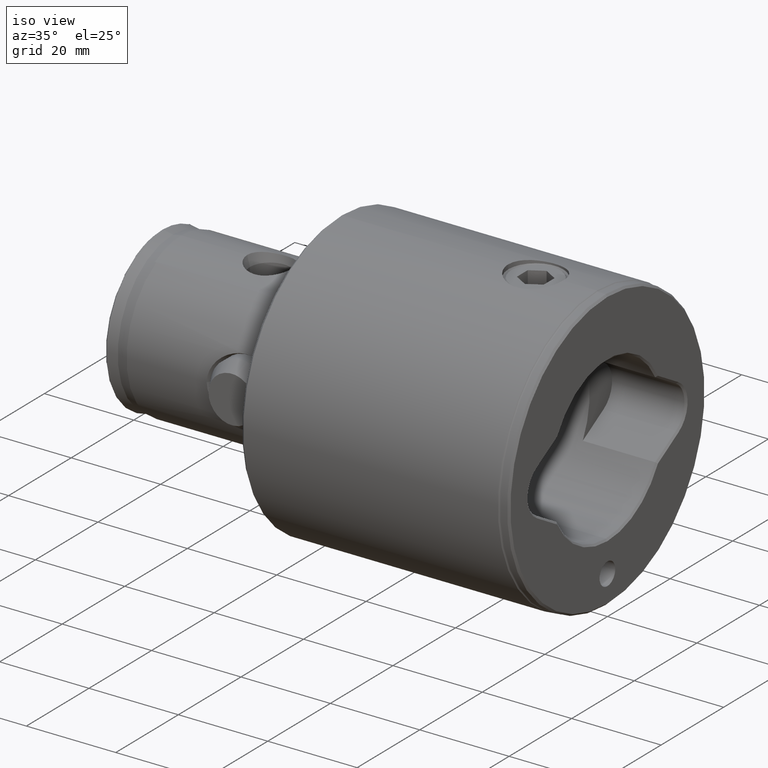
[diagram: clean part render]
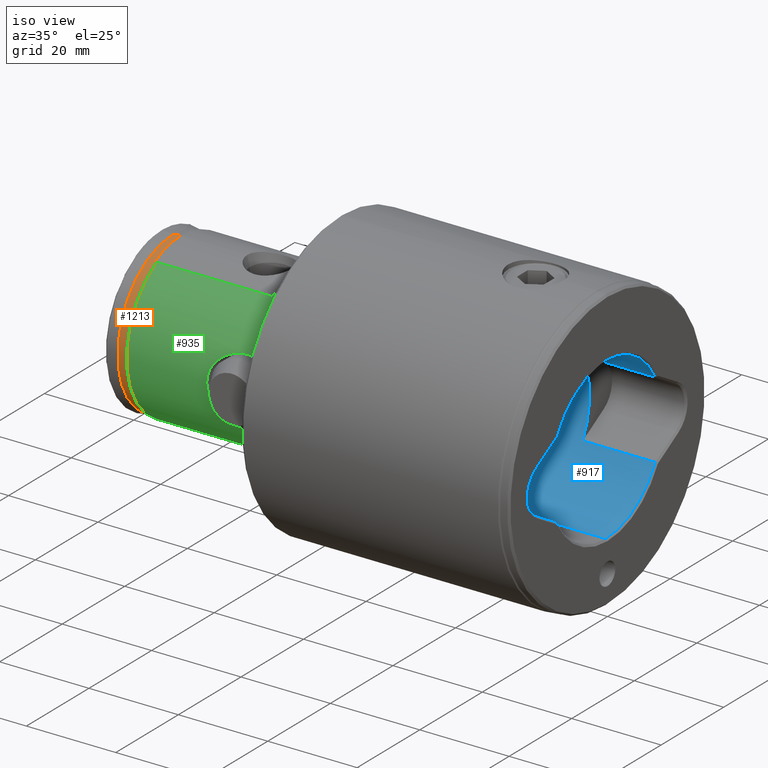
[diagram: same view with three faces highlighted in distinct colors, each labeled with its STEP entity id]
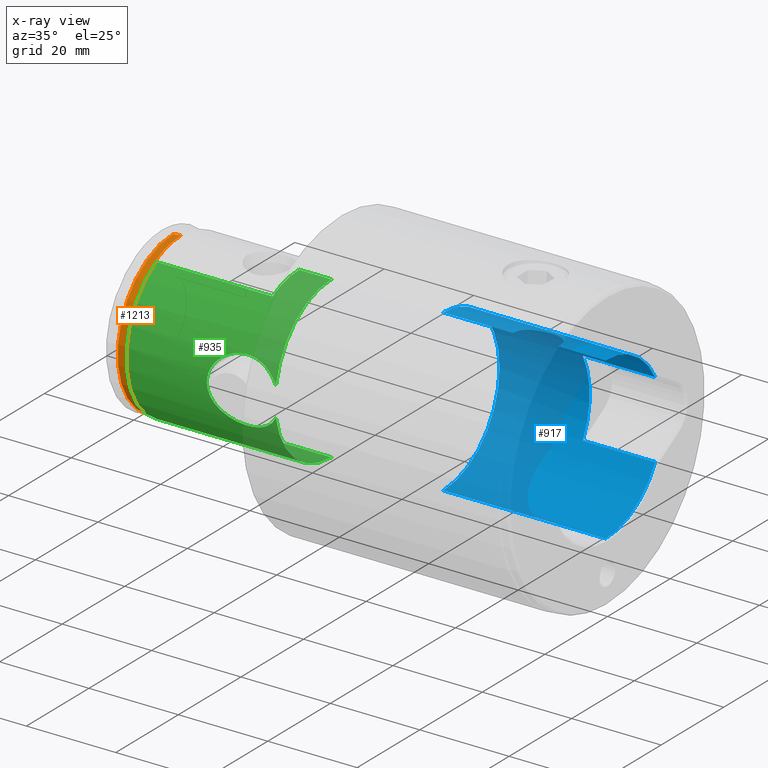
[diagram: x-ray of the same camera — body ghosted, the three highlighted faces saturated]
A machine part, iso view with three faces highlighted in distinct colors.
The next image is the same camera in x-ray (body ghosted, the three faces saturated) — at least one of them is partly hidden behind the body in this view.
Their STEP definitions:

[orange] entity #1213 — the highlighted conical surface has half-angle 10 deg.
#30 = FACE_OUTER_BOUND ( 'NONE', #951, .T. ) ;
#44 = VERTEX_POINT ( 'NONE', #664 ) ;
#52 = CIRCLE ( 'NONE', #3806, 18.00000000000000700 ) ;
#334 = CARTESIAN_POINT ( 'NONE',  ( 17.60326429340595700, 2.155778127146449900E-015, 97.25000000000000000 ) ) ;
#445 = CARTESIAN_POINT ( 'NONE',  ( 17.88531063849982400, -1.466762151048166800, 95.39600024145963200 ) ) ;
#504 = VERTEX_POINT ( 'NONE', #754 ) ;
#664 = CARTESIAN_POINT ( 'NONE',  ( 17.93000000000000000, -3.929418885916348800E-016, 95.39698972737326700 ) ) ;
#736 = VECTOR ( 'NONE', #3498, 1000.000000000000100 ) ;
#754 = CARTESIAN_POINT ( 'NONE',  ( -18.00000000000000700, 0.0000000000000000000, 95.00000000000000000 ) ) ;
#783 = CARTESIAN_POINT ( 'NONE',  ( 15.84330939538189000, -8.499999999999998200, 95.11659073622345800 ) ) ;
#850 = EDGE_CURVE ( 'NONE', #504, #1059, #52, .T. ) ;
#857 = DIRECTION ( 'NONE',  ( 1.000000000000000000, 0.0000000000000000000, 0.0000000000000000000 ) ) ;
#894 = CARTESIAN_POINT ( 'NONE',  ( 0.0000000000000000000, 0.0000000000000000000, 97.25000000000000000 ) ) ;
#951 = EDGE_LOOP ( 'NONE', ( #1546, #3963, #3264, #3399, #2241, #2447 ) ) ;
#998 = CARTESIAN_POINT ( 'NONE',  ( 0.0000000000000000000, 0.0000000000000000000, 95.00000000000000000 ) ) ;
#1059 = VERTEX_POINT ( 'NONE', #1589 ) ;
#1162 = CARTESIAN_POINT ( 'NONE',  ( 17.56801920154230600, -3.666809468810986700, 95.38897531619031200 ) ) ;
#1213 = ADVANCED_FACE ( 'NONE', ( #30 ), #1721, .T. ) ;
#1215 = B_SPLINE_CURVE_WITH_KNOTS ( 'NONE', 3,
 ( #3355, #3606, #445, #4327, #1162, #3592, #1885, #3984 ),
 .UNSPECIFIED., .F., .F.,
 ( 4, 2, 2, 4 ),
 ( 0.008809857618304313100, 0.01101073208417996200, 0.01321160655005560900, 0.01761335548180690800 ),
 .UNSPECIFIED. ) ;
#1269 = DIRECTION ( 'NONE',  ( 0.0000000000000000000, 0.0000000000000000000, 1.000000000000000000 ) ) ;
#1308 = CARTESIAN_POINT ( 'NONE',  ( 15.79663165262252100, -8.499999999999998200, 95.34976559443630600 ) ) ;
#1439 = VERTEX_POINT ( 'NONE', #4355 ) ;
#1546 = ORIENTED_EDGE ( 'NONE', *, *, #3016, .F. ) ;
#1589 = CARTESIAN_POINT ( 'NONE',  ( 15.86663165262243400, -8.499999999999998200, 95.00000000000000000 ) ) ;
#1667 = DIRECTION ( 'NONE',  ( -1.000000000000000000, 0.0000000000000000000, 0.0000000000000000000 ) ) ;
#1721 = CONICAL_SURFACE ( 'NONE', #4280, 17.60326429340595700, 0.1745329251994342500 ) ;
#1732 = EDGE_CURVE ( 'NONE', #1439, #4663, #3944, .T. ) ;
#1802 = CARTESIAN_POINT ( 'NONE',  ( 15.86663165262243400, -8.499999999999998200, 95.00000000000000000 ) ) ;
#1885 = CARTESIAN_POINT ( 'NONE',  ( 16.49943493794888700, -7.188103429114376800, 95.36531920132326000 ) ) ;
#2111 = EDGE_CURVE ( 'NONE', #2378, #1059, #3269, .T. ) ;
#2241 = ORIENTED_EDGE ( 'NONE', *, *, #2111, .F. ) ;
#2299 = VECTOR ( 'NONE', #2868, 1000.000000000000100 ) ;
#2369 = CARTESIAN_POINT ( 'NONE',  ( -17.60326429340595700, 0.0000000000000000000, 97.25000000000000000 ) ) ;
#2378 = VERTEX_POINT ( 'NONE', #1308 ) ;
#2447 = ORIENTED_EDGE ( 'NONE', *, *, #4181, .F. ) ;
#2521 = LINE ( 'NONE', #334, #2299 ) ;
#2541 = AXIS2_PLACEMENT_3D ( 'NONE', #894, #1269, #857 ) ;
#2542 = CARTESIAN_POINT ( 'NONE',  ( 17.60326429340595700, 0.0000000000000000000, 97.25000000000000000 ) ) ;
#2746 = LINE ( 'NONE', #2369, #736 ) ;
#2868 = DIRECTION ( 'NONE',  ( 0.1736481776669316100, 2.126576849575787000E-017, -0.9848077530122079100 ) ) ;
#3016 = EDGE_CURVE ( 'NONE', #4663, #44, #2521, .T. ) ;
#3264 = ORIENTED_EDGE ( 'NONE', *, *, #3914, .T. ) ;
#3269 = B_SPLINE_CURVE_WITH_KNOTS ( 'NONE', 3,
 ( #3702, #4051, #783, #1802 ),
 .UNSPECIFIED., .F., .F.,
 ( 4, 4 ),
 ( 0.005573655053035222300, 0.005930356117145641600 ),
 .UNSPECIFIED. ) ;
#3355 = CARTESIAN_POINT ( 'NONE',  ( 17.93000000000000000, -3.929418885916348800E-016, 95.39698972737326700 ) ) ;
#3399 = ORIENTED_EDGE ( 'NONE', *, *, #850, .T. ) ;
#3498 = DIRECTION ( 'NONE',  ( -0.1736481776669316100, 0.0000000000000000000, -0.9848077530122079100 ) ) ;
#3502 = DIRECTION ( 'NONE',  ( 1.000000000000000000, 0.0000000000000000000, 0.0000000000000000000 ) ) ;
#3523 = CARTESIAN_POINT ( 'NONE',  ( 0.0000000000000000000, 0.0000000000000000000, 97.25000000000000000 ) ) ;
#3592 = CARTESIAN_POINT ( 'NONE',  ( 17.02863228476655500, -5.815292437056414500, 95.37703411098779300 ) ) ;
#3606 = CARTESIAN_POINT ( 'NONE',  ( 17.93000000000000300, -0.7336969867331171200, 95.39698972737323900 ) ) ;
#3702 = CARTESIAN_POINT ( 'NONE',  ( 15.79663165262252100, -8.499999999999998200, 95.34976559443630600 ) ) ;
#3806 = AXIS2_PLACEMENT_3D ( 'NONE', #998, #4600, #3502 ) ;
#3866 = DIRECTION ( 'NONE',  ( 0.0000000000000000000, 0.0000000000000000000, -1.000000000000000000 ) ) ;
#3914 = EDGE_CURVE ( 'NONE', #1439, #504, #2746, .T. ) ;
#3944 = CIRCLE ( 'NONE', #2541, 17.60326429340595700 ) ;
#3963 = ORIENTED_EDGE ( 'NONE', *, *, #1732, .F. ) ;
#3984 = CARTESIAN_POINT ( 'NONE',  ( 15.79663165262252100, -8.499999999999998200, 95.34976559443630600 ) ) ;
#4051 = CARTESIAN_POINT ( 'NONE',  ( 15.81997610764692500, -8.499999999999998200, 95.23317929267946600 ) ) ;
#4181 = EDGE_CURVE ( 'NONE', #44, #2378, #1215, .T. ) ;
#4280 = AXIS2_PLACEMENT_3D ( 'NONE', #3523, #3866, #1667 ) ;
#4327 = CARTESIAN_POINT ( 'NONE',  ( 17.70498954502348700, -2.931606727901616700, 95.39200785328770800 ) ) ;
#4355 = CARTESIAN_POINT ( 'NONE',  ( -17.60326429340595700, 2.180071182805846200E-015, 97.25000000000000000 ) ) ;
#4600 = DIRECTION ( 'NONE',  ( 0.0000000000000000000, 0.0000000000000000000, 1.000000000000000000 ) ) ;
#4663 = VERTEX_POINT ( 'NONE', #2542 ) ;

[blue] entity #917 — the highlighted cylindrical surface (partial cylindrical patch) has radius 18 mm, axis along (1, 0, -0).
#32 = ORIENTED_EDGE ( 'NONE', *, *, #3904, .T. ) ;
#65 = CARTESIAN_POINT ( 'NONE',  ( 0.0000000000000000000, 0.0000000000000000000, 16.60000000000000100 ) ) ;
#91 = CARTESIAN_POINT ( 'NONE',  ( 18.00000000000000000, 2.204364238465235000E-015, 0.3999999999999975800 ) ) ;
#129 = DIRECTION ( 'NONE',  ( 0.0000000000000000000, 0.0000000000000000000, -1.000000000000000000 ) ) ;
#168 = AXIS2_PLACEMENT_3D ( 'NONE', #545, #1671, #4546 ) ;
#182 = CARTESIAN_POINT ( 'NONE',  ( 17.95408580892885200, 1.325953201509896900, 11.11409732700794500 ) ) ;
#195 = CARTESIAN_POINT ( 'NONE',  ( 17.92682137901592700, 1.650867325673279500, 11.21303207262179000 ) ) ;
#198 = DIRECTION ( 'NONE',  ( 0.0000000000000000000, 0.0000000000000000000, -1.000000000000000000 ) ) ;
#225 = CARTESIAN_POINT ( 'NONE',  ( 18.00000000000000400, 0.1669674265801994200, 21.15000000000000200 ) ) ;
#237 = CARTESIAN_POINT ( 'NONE',  ( 17.58707752596751900, 3.840910688323955700, 19.42171716019701900 ) ) ;
#268 = ORIENTED_EDGE ( 'NONE', *, *, #590, .F. ) ;
#279 = LINE ( 'NONE', #2371, #3018 ) ;
#303 = EDGE_CURVE ( 'NONE', #1352, #4143, #1746, .T. ) ;
#362 = CARTESIAN_POINT ( 'NONE',  ( 0.0000000000000000000, 0.0000000000000000000, 42.00000000000000000 ) ) ;
#409 = CARTESIAN_POINT ( 'NONE',  ( 18.00000000000000000, 2.204364238465235400E-015, 36.75000000000000700 ) ) ;
#458 = CIRCLE ( 'NONE', #168, 18.00000000000000000 ) ;
#470 = CARTESIAN_POINT ( 'NONE',  ( 2.219672323454577300E-015, 17.99999999999999600, 36.75000000000000700 ) ) ;
#474 = LINE ( 'NONE', #1942, #3894 ) ;
#495 = CYLINDRICAL_SURFACE ( 'NONE', #3887, 18.00000000000000000 ) ;
#502 = CARTESIAN_POINT ( 'NONE',  ( -8.593024545601728900, 15.81644489633135500, 0.4000000000000114600 ) ) ;
#532 = CARTESIAN_POINT ( 'NONE',  ( 17.35579387499611000, 4.772921141648612100, 14.24534904200195000 ) ) ;
#545 = CARTESIAN_POINT ( 'NONE',  ( 0.0000000000000000000, 0.0000000000000000000, 0.3999999999999975800 ) ) ;
#549 = FACE_OUTER_BOUND ( 'NONE', #4697, .T. ) ;
#562 = CARTESIAN_POINT ( 'NONE',  ( 17.81921347916677700, 2.560091004293864700, 11.62657564635202700 ) ) ;
#566 = EDGE_CURVE ( 'NONE', #3547, #3574, #2271, .T. ) ;
#576 = CARTESIAN_POINT ( 'NONE',  ( 17.81884038093112100, 2.562580671136155200, 20.47190151266051200 ) ) ;
#590 = EDGE_CURVE ( 'NONE', #3500, #2316, #3918, .T. ) ;
#726 = EDGE_CURVE ( 'NONE', #3547, #1352, #279, .T. ) ;
#801 = ORIENTED_EDGE ( 'NONE', *, *, #726, .T. ) ;
#917 = ADVANCED_FACE ( 'NONE', ( #549 ), #495, .F. ) ;
#918 = CARTESIAN_POINT ( 'NONE',  ( 17.34014442292774300, 4.829282020156851400, 14.40195655172721900 ) ) ;
#934 = CARTESIAN_POINT ( 'NONE',  ( 17.99999999999999600, 0.3388392975606111500, 10.95000000000000800 ) ) ;
#947 = CARTESIAN_POINT ( 'NONE',  ( 17.99767731697609500, 0.3341241086812777300, 21.14182093848148000 ) ) ;
#967 = CARTESIAN_POINT ( 'NONE',  ( 17.40760265911061900, 4.581789899757505500, 13.78563109611561000 ) ) ;
#1170 = CARTESIAN_POINT ( 'NONE',  ( 0.0000000000000000000, -3.943992510145584200E-015, 36.75000000000000700 ) ) ;
#1276 = CARTESIAN_POINT ( 'NONE',  ( 17.44877358553211300, 4.424599507310524000, 13.49164033936244200 ) ) ;
#1292 = CARTESIAN_POINT ( 'NONE',  ( 17.33801074618446900, 4.838508576983852700, 17.69663072837335300 ) ) ;
#1352 = VERTEX_POINT ( 'NONE', #3393 ) ;
#1375 = CARTESIAN_POINT ( 'NONE',  ( 18.00000000000000000, 2.204342783269225900E-015, 21.14999999999999500 ) ) ;
#1406 = CARTESIAN_POINT ( 'NONE',  ( 18.00000000000000000, 2.204364238465235000E-015, 42.00000000000000000 ) ) ;
#1465 = VECTOR ( 'NONE', #2155, 1000.000000000000000 ) ;
#1516 = CARTESIAN_POINT ( 'NONE',  ( 8.593024545601728900, 15.81644489633135500, 16.60000000000000100 ) ) ;
#1595 = CIRCLE ( 'NONE', #3525, 18.00000000000000000 ) ;
#1639 = CARTESIAN_POINT ( 'NONE',  ( 18.00000000000000000, -3.834901633434925000E-016, 10.95000000000000600 ) ) ;
#1649 = VECTOR ( 'NONE', #1738, 1000.000000000000000 ) ;
#1658 = CARTESIAN_POINT ( 'NONE',  ( 17.40779370158115900, 4.581102523142847700, 18.31628720104578200 ) ) ;
#1663 = DIRECTION ( 'NONE',  ( 1.000000000000000000, 1.776356839400250500E-015, 0.0000000000000000000 ) ) ;
#1671 = DIRECTION ( 'NONE',  ( -0.0000000000000000000, -0.0000000000000000000, -1.000000000000000000 ) ) ;
#1703 = AXIS2_PLACEMENT_3D ( 'NONE', #3124, #3489, #1663 ) ;
#1738 = DIRECTION ( 'NONE',  ( -0.0000000000000000000, -0.0000000000000000000, 1.000000000000000000 ) ) ;
#1746 = CIRCLE ( 'NONE', #1703, 18.00000000000000000 ) ;
#1778 = DIRECTION ( 'NONE',  ( -0.0000000000000000000, 6.173258339316729700E-017, -1.000000000000000000 ) ) ;
#1854 = DIRECTION ( 'NONE',  ( -0.0000000000000000000, 6.173258339316729700E-017, -1.000000000000000000 ) ) ;
#1919 = CARTESIAN_POINT ( 'NONE',  ( 18.00000000000000000, -3.834901633434925000E-016, 10.95000000000000600 ) ) ;
#1942 = CARTESIAN_POINT ( 'NONE',  ( 18.00000000000000000, 2.204364238465235000E-015, 42.00000000000000000 ) ) ;
#1984 = LINE ( 'NONE', #1406, #1465 ) ;
#1995 = EDGE_CURVE ( 'NONE', #2316, #4204, #1595, .T. ) ;
#2000 = CARTESIAN_POINT ( 'NONE',  ( 17.99044735554839400, 0.6716792941698877000, 10.98342975814724900 ) ) ;
#2017 = CARTESIAN_POINT ( 'NONE',  ( 17.44933250627814700, 4.422300811933753900, 18.61183196051307600 ) ) ;
#2034 = CARTESIAN_POINT ( 'NONE',  ( 17.68263079096793100, 3.373654513180442300, 12.21100172397673600 ) ) ;
#2038 = VERTEX_POINT ( 'NONE', #1375 ) ;
#2048 = CARTESIAN_POINT ( 'NONE',  ( 17.73094234758779600, 3.113216734007286000, 11.99677529246041300 ) ) ;
#2072 = B_SPLINE_CURVE_WITH_KNOTS ( 'NONE', 3,
 ( #1639, #934, #2000, #182, #195, #3854, #562, #2048, #2034, #3147, #2765, #1276, #967, #532, #918, #4223, #4565, #4194, #4165, #3131, #2739, #3481, #1292, #1658, #2017, #2382, #237, #4207, #3841, #576, #3117, #4583, #3099, #2396, #3516, #947, #225, #3824 ),
 .UNSPECIFIED., .F., .F.,
 ( 4, 2, 2, 2, 2, 2, 2, 2, 2, 2, 2, 2, 2, 2, 2, 2, 2, 2, 4 ),
 ( 8.074180906152403000E-019, 0.001001713328729564800, 0.002003426657459128800, 0.003005139986188692800, 0.004006853314918256700, 0.005008566643647821600, 0.006010279972377384700, 0.006511136636742165800, 0.007011993301106945200, 0.008013706629836503000, 0.009015419958566063500, 0.01001713328729562400, 0.01101884661602518500, 0.01202055994475474500, 0.01302227327348430600, 0.01402398660221386600, 0.01502569993094342700, 0.01552655659530820600, 0.01602741325967298500 ),
 .UNSPECIFIED. ) ;
#2130 = CARTESIAN_POINT ( 'NONE',  ( 0.0000000000000000000, -3.943992510145584200E-015, 36.75000000000000700 ) ) ;
#2131 = ORIENTED_EDGE ( 'NONE', *, *, #2174, .T. ) ;
#2155 = DIRECTION ( 'NONE',  ( 0.0000000000000000000, 0.0000000000000000000, -1.000000000000000000 ) ) ;
#2174 = EDGE_CURVE ( 'NONE', #3500, #3180, #3041, .T. ) ;
#2210 = VERTEX_POINT ( 'NONE', #502 ) ;
#2258 = CARTESIAN_POINT ( 'NONE',  ( -18.00000000000000000, 0.0000000000000000000, 42.00000000000000000 ) ) ;
#2271 = CIRCLE ( 'NONE', #3430, 18.00000000000000000 ) ;
#2302 = ORIENTED_EDGE ( 'NONE', *, *, #3910, .T. ) ;
#2316 = VERTEX_POINT ( 'NONE', #470 ) ;
#2364 = AXIS2_PLACEMENT_3D ( 'NONE', #1170, #1854, #4389 ) ;
#2371 = CARTESIAN_POINT ( 'NONE',  ( 8.593024545601721800, 15.81644489633135500, 42.00000000000000000 ) ) ;
#2382 = CARTESIAN_POINT ( 'NONE',  ( 17.53861514782138900, 4.053754812824190700, 19.16236234758116900 ) ) ;
#2389 = EDGE_CURVE ( 'NONE', #4204, #2038, #474, .T. ) ;
#2396 = CARTESIAN_POINT ( 'NONE',  ( 17.98128529180006700, 0.8369774523298318900, 21.08364901014820300 ) ) ;
#2597 = DIRECTION ( 'NONE',  ( -1.000000000000000000, 0.0000000000000000000, 0.0000000000000000000 ) ) ;
#2630 = CARTESIAN_POINT ( 'NONE',  ( -18.00000000000000000, 0.0000000000000000000, 0.3999999999999975800 ) ) ;
#2634 = DIRECTION ( 'NONE',  ( -1.000000000000000000, 0.0000000000000000000, 0.0000000000000000000 ) ) ;
#2739 = CARTESIAN_POINT ( 'NONE',  ( 17.27237331285531100, 5.066534897402465100, 16.72227911078188700 ) ) ;
#2765 = CARTESIAN_POINT ( 'NONE',  ( 17.53908618356960100, 4.051818885954036300, 12.93470729004540400 ) ) ;
#2829 = ORIENTED_EDGE ( 'NONE', *, *, #2389, .F. ) ;
#2890 = ORIENTED_EDGE ( 'NONE', *, *, #4027, .T. ) ;
#2918 = VECTOR ( 'NONE', #129, 1000.000000000000000 ) ;
#2940 = CARTESIAN_POINT ( 'NONE',  ( -8.593024545601728900, 15.81644489633135500, 16.60000000000000100 ) ) ;
#3018 = VECTOR ( 'NONE', #198, 1000.000000000000000 ) ;
#3041 = LINE ( 'NONE', #2258, #2918 ) ;
#3099 = CARTESIAN_POINT ( 'NONE',  ( 17.95378096696725800, 1.330547629143497900, 20.98480065036864400 ) ) ;
#3117 = CARTESIAN_POINT ( 'NONE',  ( 17.85975852360266100, 2.263790814576879000, 20.63215693892274800 ) ) ;
#3124 = CARTESIAN_POINT ( 'NONE',  ( 0.0000000000000000000, 0.0000000000000000000, 0.3999999999999975800 ) ) ;
#3131 = CARTESIAN_POINT ( 'NONE',  ( 17.26234311941163200, 5.100148042134982500, 16.38231951396366500 ) ) ;
#3147 = CARTESIAN_POINT ( 'NONE',  ( 17.58695266685271400, 3.841363346244711400, 12.67903868611044700 ) ) ;
#3180 = VERTEX_POINT ( 'NONE', #2630 ) ;
#3209 = ORIENTED_EDGE ( 'NONE', *, *, #303, .T. ) ;
#3348 = DIRECTION ( 'NONE',  ( -0.0000000000000000000, -0.0000000000000000000, 1.000000000000000000 ) ) ;
#3393 = CARTESIAN_POINT ( 'NONE',  ( 8.593024545601721800, 15.81644489633135500, 0.4000000000000114600 ) ) ;
#3430 = AXIS2_PLACEMENT_3D ( 'NONE', #65, #3348, #2634 ) ;
#3435 = EDGE_CURVE ( 'NONE', #3631, #4143, #1984, .T. ) ;
#3481 = CARTESIAN_POINT ( 'NONE',  ( 17.31028795902499000, 4.935441874935635900, 17.37783604730498500 ) ) ;
#3489 = DIRECTION ( 'NONE',  ( -0.0000000000000000000, -0.0000000000000000000, -1.000000000000000000 ) ) ;
#3500 = VERTEX_POINT ( 'NONE', #3653 ) ;
#3516 = CARTESIAN_POINT ( 'NONE',  ( 17.98834907492941700, 0.6688238067563672100, 21.10875025130480900 ) ) ;
#3525 = AXIS2_PLACEMENT_3D ( 'NONE', #2130, #1778, #4682 ) ;
#3547 = VERTEX_POINT ( 'NONE', #1516 ) ;
#3574 = VERTEX_POINT ( 'NONE', #2940 ) ;
#3631 = VERTEX_POINT ( 'NONE', #1919 ) ;
#3653 = CARTESIAN_POINT ( 'NONE',  ( -18.00000000000000000, 0.0000000000000000000, 36.75000000000000700 ) ) ;
#3790 = DIRECTION ( 'NONE',  ( 0.0000000000000000000, 0.0000000000000000000, -1.000000000000000000 ) ) ;
#3824 = CARTESIAN_POINT ( 'NONE',  ( 18.00000000000000000, 2.204342783269225900E-015, 21.14999999999999500 ) ) ;
#3841 = CARTESIAN_POINT ( 'NONE',  ( 17.73082782238714100, 3.113781776239988200, 20.10270227548307900 ) ) ;
#3854 = CARTESIAN_POINT ( 'NONE',  ( 17.85926761126977500, 2.267784837935132200, 11.46974088218879800 ) ) ;
#3887 = AXIS2_PLACEMENT_3D ( 'NONE', #362, #4403, #2597 ) ;
#3894 = VECTOR ( 'NONE', #3790, 1000.000000000000000 ) ;
#3904 = EDGE_CURVE ( 'NONE', #3631, #2038, #2072, .T. ) ;
#3910 = EDGE_CURVE ( 'NONE', #3180, #2210, #458, .T. ) ;
#3918 = CIRCLE ( 'NONE', #2364, 18.00000000000000000 ) ;
#4027 = EDGE_CURVE ( 'NONE', #2210, #3574, #4046, .T. ) ;
#4046 = LINE ( 'NONE', #4266, #1649 ) ;
#4096 = ORIENTED_EDGE ( 'NONE', *, *, #566, .F. ) ;
#4143 = VERTEX_POINT ( 'NONE', #91 ) ;
#4165 = CARTESIAN_POINT ( 'NONE',  ( 17.26243089153804900, 5.099850952612671400, 15.71315200432543000 ) ) ;
#4194 = CARTESIAN_POINT ( 'NONE',  ( 17.27220950132253600, 5.067096968140701200, 15.38105141352238000 ) ) ;
#4204 = VERTEX_POINT ( 'NONE', #409 ) ;
#4207 = CARTESIAN_POINT ( 'NONE',  ( 17.68345807745462400, 3.369451178304538900, 19.89289868212400600 ) ) ;
#4223 = CARTESIAN_POINT ( 'NONE',  ( 17.31264863366539700, 4.926943345061485700, 14.72212903030474300 ) ) ;
#4266 = CARTESIAN_POINT ( 'NONE',  ( -8.593024545601728900, 15.81644489633135500, 42.00000000000000000 ) ) ;
#4303 = ORIENTED_EDGE ( 'NONE', *, *, #3435, .F. ) ;
#4389 = DIRECTION ( 'NONE',  ( 0.0000000000000000000, -1.000000000000000000, 0.0000000000000000000 ) ) ;
#4403 = DIRECTION ( 'NONE',  ( 0.0000000000000000000, 0.0000000000000000000, -1.000000000000000000 ) ) ;
#4546 = DIRECTION ( 'NONE',  ( 1.000000000000000000, 0.0000000000000000000, 0.0000000000000000000 ) ) ;
#4551 = ORIENTED_EDGE ( 'NONE', *, *, #1995, .F. ) ;
#4565 = CARTESIAN_POINT ( 'NONE',  ( 17.30076003296532900, 4.968387612423031300, 14.88665761415905700 ) ) ;
#4583 = CARTESIAN_POINT ( 'NONE',  ( 17.92700766216510300, 1.648672088146762500, 20.88764316696119400 ) ) ;
#4682 = DIRECTION ( 'NONE',  ( -8.881784197001252300E-016, -1.000000000000000000, 0.0000000000000000000 ) ) ;
#4697 = EDGE_LOOP ( 'NONE', ( #2829, #4551, #268, #2131, #2302, #2890, #4096, #801, #3209, #4303, #32 ) ) ;

[green] entity #935 — the highlighted cylindrical surface (partial cylindrical patch) has radius 18 mm, axis along (1, 0, -0).
#6 = VERTEX_POINT ( 'NONE', #3982 ) ;
#52 = CIRCLE ( 'NONE', #3806, 18.00000000000000700 ) ;
#67 = VECTOR ( 'NONE', #699, 1000.000000000000000 ) ;
#105 = CARTESIAN_POINT ( 'NONE',  ( -6.843723836522056700, -16.64892713270499400, 71.54194912706123000 ) ) ;
#113 = VERTEX_POINT ( 'NONE', #2575 ) ;
#152 = CARTESIAN_POINT ( 'NONE',  ( -7.039418946743222000, -16.56681553757276900, 67.25103682966239700 ) ) ;
#242 = B_SPLINE_CURVE_WITH_KNOTS ( 'NONE', 3,
 ( #1597, #4091, #3412, #3737, #3752, #3377, #2656, #4108, #4459, #1235, #4152, #1199, #491, #152, #3005, #4443, #818, #475, #4490, #2277, #3038, #506, #105, #1183, #1214, #1915, #3058, #1567, #4142, #4127, #1933, #4472, #2315, #853, #3781, #518, #2360, #3816 ),
 .UNSPECIFIED., .F., .F.,
 ( 4, 2, 2, 2, 2, 2, 2, 2, 2, 2, 2, 2, 2, 2, 2, 2, 2, 2, 4 ),
 ( 0.04641588059310971400, 0.04771276158152466800, 0.04836120207573214900, 0.04900964256993962900, 0.05030652355835455600, 0.05160340454676948200, 0.05290028553518441600, 0.05419716652359934900, 0.05549404751201427600, 0.05614248800622172200, 0.05679092850042916100, 0.05808780948884409400, 0.05938469047725902100, 0.06197845245408887400, 0.06327533344250380100, 0.06457221443091873400, 0.06522065492512620100, 0.06586909541933366800, 0.06716597640774861500 ),
 .UNSPECIFIED. ) ;
#254 = EDGE_CURVE ( 'NONE', #6, #113, #2227, .T. ) ;
#258 = CARTESIAN_POINT ( 'NONE',  ( 18.00000000000000000, 2.204364238465235400E-015, 61.79524911219961300 ) ) ;
#286 = CARTESIAN_POINT ( 'NONE',  ( 6.851103092301501700, -16.64590089608024600, 71.51787429186136100 ) ) ;
#296 = CARTESIAN_POINT ( 'NONE',  ( 4.971759811575438400, -17.30268988972943900, 74.84979233775291600 ) ) ;
#316 = CARTESIAN_POINT ( 'NONE',  ( 3.841530997476229300, -17.58624538090440500, 75.82531245029780100 ) ) ;
#475 = CARTESIAN_POINT ( 'NONE',  ( -7.181333183779457000, -16.50541026125418000, 69.62448080242082000 ) ) ;
#491 = CARTESIAN_POINT ( 'NONE',  ( -6.830644455476521800, -16.65398128036049400, 66.41429044704558700 ) ) ;
#492 = DIRECTION ( 'NONE',  ( 1.000000000000000000, 0.0000000000000000000, 0.0000000000000000000 ) ) ;
#504 = VERTEX_POINT ( 'NONE', #754 ) ;
#506 = CARTESIAN_POINT ( 'NONE',  ( -6.955806354920339300, -16.60194951588563600, 71.12729140631609000 ) ) ;
#518 = CARTESIAN_POINT ( 'NONE',  ( -0.8688911872211441100, -17.98397732725764800, 77.02338253325736200 ) ) ;
#654 = CARTESIAN_POINT ( 'NONE',  ( 4.350031746824241100, -17.46730380023369400, 75.43028257451197800 ) ) ;
#673 = CARTESIAN_POINT ( 'NONE',  ( 3.424277381036890900, -17.67230754541480000, 61.90090167245379100 ) ) ;
#689 = CARTESIAN_POINT ( 'NONE',  ( 6.394836116758646900, -16.82709209033171800, 72.72980790820257400 ) ) ;
#695 = VECTOR ( 'NONE', #2565, 1000.000000000000000 ) ;
#699 = DIRECTION ( 'NONE',  ( 0.0000000000000000000, 0.0000000000000000000, -1.000000000000000000 ) ) ;
#746 = CARTESIAN_POINT ( 'NONE',  ( -18.00000000000000000, 0.0000000000000000000, 100.0000000000000000 ) ) ;
#754 = CARTESIAN_POINT ( 'NONE',  ( -18.00000000000000700, 0.0000000000000000000, 95.00000000000000000 ) ) ;
#814 = CARTESIAN_POINT ( 'NONE',  ( 3.313215801928249600E-026, -18.00000000000000000, 77.06809799800078100 ) ) ;
#818 = CARTESIAN_POINT ( 'NONE',  ( -7.210721480825996300, -16.49260296257150700, 68.97700701714200000 ) ) ;
#819 = VERTEX_POINT ( 'NONE', #3794 ) ;
#850 = EDGE_CURVE ( 'NONE', #504, #1059, #52, .T. ) ;
#853 = CARTESIAN_POINT ( 'NONE',  ( -1.709350851662243300, -17.91985484655409200, 76.84055705398813500 ) ) ;
#935 = ADVANCED_FACE ( 'NONE', ( #4025 ), #3239, .T. ) ;
#998 = CARTESIAN_POINT ( 'NONE',  ( 0.0000000000000000000, 0.0000000000000000000, 95.00000000000000000 ) ) ;
#1016 = CARTESIAN_POINT ( 'NONE',  ( 4.016048173849033500, -17.54710333113022000, 75.69775200989438700 ) ) ;
#1030 = CARTESIAN_POINT ( 'NONE',  ( 4.129862098701834400, -17.52062709145879500, 62.38989320520023800 ) ) ;
#1033 = ORIENTED_EDGE ( 'NONE', *, *, #4132, .F. ) ;
#1058 = CARTESIAN_POINT ( 'NONE',  ( 4.918634728193376700, -17.31733869872335400, 63.09451417162548400 ) ) ;
#1059 = VERTEX_POINT ( 'NONE', #1589 ) ;
#1073 = CARTESIAN_POINT ( 'NONE',  ( 5.254181453430693900, -17.21821265904062800, 74.53085811298579700 ) ) ;
#1142 = LINE ( 'NONE', #1864, #67 ) ;
#1183 = CARTESIAN_POINT ( 'NONE',  ( -6.560201112786020700, -16.76266959587589200, 72.35012496918486100 ) ) ;
#1199 = CARTESIAN_POINT ( 'NONE',  ( -6.696777297292262800, -16.70880176032268900, 66.00733528483510800 ) ) ;
#1214 = CARTESIAN_POINT ( 'NONE',  ( -6.387498603441122700, -16.82991507019143300, 72.74600082089867200 ) ) ;
#1235 = CARTESIAN_POINT ( 'NONE',  ( -6.173631501305217200, -16.90980627020242000, 64.82858653833378100 ) ) ;
#1355 = CARTESIAN_POINT ( 'NONE',  ( 7.111007416496924800, -16.53589491802425100, 67.66275066899631000 ) ) ;
#1369 = CARTESIAN_POINT ( 'NONE',  ( 4.510256775928406900, -17.42650142961080200, 75.28992811092915400 ) ) ;
#1370 = EDGE_CURVE ( 'NONE', #819, #2276, #242, .T. ) ;
#1386 = CARTESIAN_POINT ( 'NONE',  ( 7.190342815591352900, -16.50148530213958500, 68.52215132341073900 ) ) ;
#1410 = CARTESIAN_POINT ( 'NONE',  ( 7.202908213573778100, -16.49600437224984300, 68.95633875769652800 ) ) ;
#1462 = CARTESIAN_POINT ( 'NONE',  ( 15.86663165262243100, -8.499999999999998200, 100.0000000000000000 ) ) ;
#1567 = CARTESIAN_POINT ( 'NONE',  ( -4.341272467349709200, -17.47161660004353200, 75.44983825634487600 ) ) ;
#1589 = CARTESIAN_POINT ( 'NONE',  ( 15.86663165262243400, -8.499999999999998200, 95.00000000000000000 ) ) ;
#1597 = CARTESIAN_POINT ( 'NONE',  ( -3.237298999659242500, -17.70649302337436700, 61.79524911219961300 ) ) ;
#1601 = DIRECTION ( 'NONE',  ( 0.0000000000000000000, 0.0000000000000000000, 1.000000000000000000 ) ) ;
#1612 = VERTEX_POINT ( 'NONE', #3549 ) ;
#1718 = CARTESIAN_POINT ( 'NONE',  ( 2.332596670164540400, -17.84934739784171100, 76.63566664420160600 ) ) ;
#1728 = CARTESIAN_POINT ( 'NONE',  ( 6.167896239836168500, -16.91189748249615500, 64.81807299381684100 ) ) ;
#1729 = ORIENTED_EDGE ( 'NONE', *, *, #1370, .T. ) ;
#1741 = CARTESIAN_POINT ( 'NONE',  ( 0.4382047601208179400, -18.00000000000000000, 77.06809799800078100 ) ) ;
#1756 = CARTESIAN_POINT ( 'NONE',  ( 2.928190498395844400, -17.76475554076410300, 76.38453702869352900 ) ) ;
#1767 = DIRECTION ( 'NONE',  ( 0.0000000000000000000, 0.0000000000000000000, 1.000000000000000000 ) ) ;
#1773 = CARTESIAN_POINT ( 'NONE',  ( 5.996687107148138000, -16.97305808968048500, 73.48307474443811300 ) ) ;
#1864 = CARTESIAN_POINT ( 'NONE',  ( 18.00000000000000000, 2.204364238465235400E-015, 100.0000000000000000 ) ) ;
#1879 = VERTEX_POINT ( 'NONE', #258 ) ;
#1915 = CARTESIAN_POINT ( 'NONE',  ( -5.782077421936851800, -17.05146033048208700, 73.88429987461883300 ) ) ;
#1933 = CARTESIAN_POINT ( 'NONE',  ( -2.925859017906092600, -17.76517912802465200, 76.38582671915482100 ) ) ;
#1935 = DIRECTION ( 'NONE',  ( 0.0000000000000000000, 0.0000000000000000000, 1.000000000000000000 ) ) ;
#1948 = ORIENTED_EDGE ( 'NONE', *, *, #3042, .T. ) ;
#1956 = AXIS2_PLACEMENT_3D ( 'NONE', #4129, #1935, #492 ) ;
#2096 = CARTESIAN_POINT ( 'NONE',  ( 7.122681189072533700, -16.53103293741675000, 70.25702859378370100 ) ) ;
#2126 = CIRCLE ( 'NONE', #4670, 18.00000000000000000 ) ;
#2127 = CARTESIAN_POINT ( 'NONE',  ( 3.237298999659238500, -17.70649302337436700, 61.79524911219961300 ) ) ;
#2144 = CARTESIAN_POINT ( 'NONE',  ( 0.8696904636088165200, -17.98397158339345100, 77.02337025973194800 ) ) ;
#2159 = CARTESIAN_POINT ( 'NONE',  ( 3.607900966660505700, -17.63563355110881800, 62.01626676487119000 ) ) ;
#2166 = DIRECTION ( 'NONE',  ( 1.000000000000000000, 0.0000000000000000000, 0.0000000000000000000 ) ) ;
#2224 = CIRCLE ( 'NONE', #3666, 18.00000000000000000 ) ;
#2227 = CIRCLE ( 'NONE', #1956, 18.00000000000000000 ) ;
#2250 = DIRECTION ( 'NONE',  ( 0.0000000000000000000, 0.0000000000000000000, -1.000000000000000000 ) ) ;
#2252 = ORIENTED_EDGE ( 'NONE', *, *, #850, .F. ) ;
#2276 = VERTEX_POINT ( 'NONE', #814 ) ;
#2277 = CARTESIAN_POINT ( 'NONE',  ( -7.112698970001051900, -16.53512282911227200, 70.27245522588948700 ) ) ;
#2315 = CARTESIAN_POINT ( 'NONE',  ( -2.122098249100285100, -17.87567556980188900, 76.71260920577317700 ) ) ;
#2360 = CARTESIAN_POINT ( 'NONE',  ( -0.4390625523673392100, -18.00000000000000000, 77.06809799800078100 ) ) ;
#2383 = EDGE_CURVE ( 'NONE', #3285, #819, #2126, .T. ) ;
#2422 = ORIENTED_EDGE ( 'NONE', *, *, #3402, .T. ) ;
#2510 = EDGE_LOOP ( 'NONE', ( #1033, #4437, #4023, #2252, #3184, #4197, #1729, #1948, #2422 ) ) ;
#2522 = CARTESIAN_POINT ( 'NONE',  ( 6.565810255550289300, -16.76048226965975700, 72.33704171430409200 ) ) ;
#2565 = DIRECTION ( 'NONE',  ( -0.0000000000000000000, -0.0000000000000000000, 1.000000000000000000 ) ) ;
#2575 = CARTESIAN_POINT ( 'NONE',  ( 18.00000000000000000, 2.204364238465235400E-015, 69.00000000000000000 ) ) ;
#2656 = CARTESIAN_POINT ( 'NONE',  ( -5.068255482283231700, -17.27233395952394800, 63.26859809990338600 ) ) ;
#2681 = LINE ( 'NONE', #746, #3260 ) ;
#2722 = B_SPLINE_CURVE_WITH_KNOTS ( 'NONE', 3,
 ( #3598, #1741, #2144, #3207, #3613, #2883, #1718, #1756, #3567, #316, #1016, #654, #1369, #296, #1073, #2900, #1773, #689, #2522, #286, #4272, #2096, #3222, #4635, #1410, #1386, #4333, #1355, #2837, #3246, #3943, #4289, #1728, #3926, #4302, #1058, #2850, #1030, #3583, #2159, #673, #2127 ),
 .UNSPECIFIED., .F., .F.,
 ( 4, 2, 2, 2, 2, 2, 2, 2, 2, 2, 2, 2, 2, 2, 2, 2, 2, 2, 2, 2, 4 ),
 ( 0.01894625401984303300, 0.02024060130445995400, 0.02088777494676840800, 0.02153494858907686500, 0.02282929587369377300, 0.02347646951600222700, 0.02412364315831068100, 0.02541799044292758500, 0.02671233772754449300, 0.02800668501216140000, 0.02930103229677830400, 0.03059537958139520900, 0.03124255322370364500, 0.03188972686601207500, 0.03318407415062894100, 0.03447842143524580700, 0.03577276871986266600, 0.03706711600447953200, 0.03836146328909639800, 0.03900863693140482800, 0.03965581057371326400 ),
 .UNSPECIFIED. ) ;
#2737 = CARTESIAN_POINT ( 'NONE',  ( -18.00000000000000000, 0.0000000000000000000, 61.79524911219961300 ) ) ;
#2837 = CARTESIAN_POINT ( 'NONE',  ( 7.037007327572456300, -16.56784603071620100, 67.23872825619788800 ) ) ;
#2850 = CARTESIAN_POINT ( 'NONE',  ( 4.618544077314148000, -17.40062036638124400, 62.79703910054093500 ) ) ;
#2883 = CARTESIAN_POINT ( 'NONE',  ( 2.127811812675293200, -17.87500802053572700, 76.71066557614514600 ) ) ;
#2900 = CARTESIAN_POINT ( 'NONE',  ( 5.769543810032550900, -17.05243777709323900, 73.84358764104600000 ) ) ;
#2927 = CARTESIAN_POINT ( 'NONE',  ( 0.0000000000000000000, 0.0000000000000000000, 100.0000000000000000 ) ) ;
#3005 = CARTESIAN_POINT ( 'NONE',  ( -7.114259582216316600, -16.53449309059760400, 67.68404266855679900 ) ) ;
#3038 = CARTESIAN_POINT ( 'NONE',  ( -7.079056320294415400, -16.54959075197604100, 70.48892730428583800 ) ) ;
#3042 = EDGE_CURVE ( 'NONE', #2276, #1612, #2722, .T. ) ;
#3058 = CARTESIAN_POINT ( 'NONE',  ( -5.276011810775910900, -17.22149332640157100, 74.56206110218025200 ) ) ;
#3167 = EDGE_CURVE ( 'NONE', #6, #1059, #4174, .T. ) ;
#3184 = ORIENTED_EDGE ( 'NONE', *, *, #3485, .T. ) ;
#3207 = CARTESIAN_POINT ( 'NONE',  ( 1.503730333415541400, -17.93833029961442800, 76.89342795684424900 ) ) ;
#3222 = CARTESIAN_POINT ( 'NONE',  ( 7.172808887381967800, -16.50912603615658700, 69.82840923126214200 ) ) ;
#3239 = CYLINDRICAL_SURFACE ( 'NONE', #3493, 18.00000000000000000 ) ;
#3246 = CARTESIAN_POINT ( 'NONE',  ( 6.826606260647946700, -16.65564292328306800, 66.40083137012267400 ) ) ;
#3260 = VECTOR ( 'NONE', #2250, 1000.000000000000000 ) ;
#3285 = VERTEX_POINT ( 'NONE', #2737 ) ;
#3304 = DIRECTION ( 'NONE',  ( 0.0000000000000000000, 0.0000000000000000000, -1.000000000000000000 ) ) ;
#3377 = CARTESIAN_POINT ( 'NONE',  ( -4.923483039254702700, -17.31427774493872800, 63.11210802591247000 ) ) ;
#3402 = EDGE_CURVE ( 'NONE', #1612, #1879, #2224, .T. ) ;
#3412 = CARTESIAN_POINT ( 'NONE',  ( -3.962914389054501100, -17.56164415286662700, 62.25070469598473700 ) ) ;
#3485 = EDGE_CURVE ( 'NONE', #504, #3285, #2681, .T. ) ;
#3493 = AXIS2_PLACEMENT_3D ( 'NONE', #2927, #3304, #3772 ) ;
#3502 = DIRECTION ( 'NONE',  ( 1.000000000000000000, 0.0000000000000000000, 0.0000000000000000000 ) ) ;
#3549 = CARTESIAN_POINT ( 'NONE',  ( 3.237298999659238500, -17.70649302337436700, 61.79524911219961300 ) ) ;
#3567 = CARTESIAN_POINT ( 'NONE',  ( 3.304835705867864300, -17.69778542544320400, 76.18120297081635800 ) ) ;
#3583 = CARTESIAN_POINT ( 'NONE',  ( 3.960507287798565600, -17.55980928590966200, 62.26072708220546300 ) ) ;
#3598 = CARTESIAN_POINT ( 'NONE',  ( 3.313215801928249600E-026, -18.00000000000000000, 77.06809799800078100 ) ) ;
#3613 = CARTESIAN_POINT ( 'NONE',  ( 1.713084245616432800, -17.91950996014672600, 76.83956833055917500 ) ) ;
#3666 = AXIS2_PLACEMENT_3D ( 'NONE', #3965, #1767, #2166 ) ;
#3737 = CARTESIAN_POINT ( 'NONE',  ( -4.459124752396950200, -17.43975961400510500, 62.66426686156076200 ) ) ;
#3752 = CARTESIAN_POINT ( 'NONE',  ( -4.619183501691283700, -17.39793214276951300, 62.81012638658271600 ) ) ;
#3758 = DIRECTION ( 'NONE',  ( 1.000000000000000000, 0.0000000000000000000, 0.0000000000000000000 ) ) ;
#3772 = DIRECTION ( 'NONE',  ( -1.000000000000000000, 0.0000000000000000000, 0.0000000000000000000 ) ) ;
#3781 = CARTESIAN_POINT ( 'NONE',  ( -1.500844910435254100, -17.93856370101735800, 76.89409448250610500 ) ) ;
#3794 = CARTESIAN_POINT ( 'NONE',  ( -3.237298999659242500, -17.70649302337436700, 61.79524911219961300 ) ) ;
#3806 = AXIS2_PLACEMENT_3D ( 'NONE', #998, #4600, #3502 ) ;
#3816 = CARTESIAN_POINT ( 'NONE',  ( 3.313215801928249600E-026, -18.00000000000000000, 77.06809799800078100 ) ) ;
#3926 = CARTESIAN_POINT ( 'NONE',  ( 5.724299032351475500, -17.06715035007498900, 64.09025006569926600 ) ) ;
#3943 = CARTESIAN_POINT ( 'NONE',  ( 6.689440389934353500, -16.71174850207834300, 65.98692054982485900 ) ) ;
#3965 = CARTESIAN_POINT ( 'NONE',  ( 0.0000000000000000000, 0.0000000000000000000, 61.79524911219961300 ) ) ;
#3982 = CARTESIAN_POINT ( 'NONE',  ( 15.86663165262243100, -8.499999999999998200, 69.00000000000000000 ) ) ;
#4023 = ORIENTED_EDGE ( 'NONE', *, *, #3167, .T. ) ;
#4025 = FACE_OUTER_BOUND ( 'NONE', #2510, .T. ) ;
#4091 = CARTESIAN_POINT ( 'NONE',  ( -3.611261630728932900, -17.63812099454439400, 62.00655754861239200 ) ) ;
#4108 = CARTESIAN_POINT ( 'NONE',  ( -5.481772459910325200, -17.14739358823495900, 63.75386335888070700 ) ) ;
#4127 = CARTESIAN_POINT ( 'NONE',  ( -3.300682022449126200, -17.69847463141834300, 76.18324094458769500 ) ) ;
#4129 = CARTESIAN_POINT ( 'NONE',  ( 0.0000000000000000000, 0.0000000000000000000, 69.00000000000000000 ) ) ;
#4132 = EDGE_CURVE ( 'NONE', #113, #1879, #1142, .T. ) ;
#4142 = CARTESIAN_POINT ( 'NONE',  ( -4.008147486664730900, -17.55178793791163700, 75.71552654859979700 ) ) ;
#4152 = CARTESIAN_POINT ( 'NONE',  ( -6.369275846430491900, -16.83636563000959900, 65.21592467495578700 ) ) ;
#4162 = CARTESIAN_POINT ( 'NONE',  ( 0.0000000000000000000, 0.0000000000000000000, 61.79524911219961300 ) ) ;
#4174 = LINE ( 'NONE', #1462, #695 ) ;
#4197 = ORIENTED_EDGE ( 'NONE', *, *, #2383, .T. ) ;
#4272 = CARTESIAN_POINT ( 'NONE',  ( 6.961829844061473000, -16.59941452345414000, 71.10173364473531900 ) ) ;
#4289 = CARTESIAN_POINT ( 'NONE',  ( 6.360457771283448900, -16.83970687592045200, 65.19743629501529400 ) ) ;
#4302 = CARTESIAN_POINT ( 'NONE',  ( 5.470933847880922400, -17.15086207826890400, 63.73970718098047400 ) ) ;
#4333 = CARTESIAN_POINT ( 'NONE',  ( 7.176256416013017300, -16.50763173977374300, 68.30635139094557900 ) ) ;
#4437 = ORIENTED_EDGE ( 'NONE', *, *, #254, .F. ) ;
#4443 = CARTESIAN_POINT ( 'NONE',  ( -7.199373526161386900, -16.49761109970115700, 68.54575352259367100 ) ) ;
#4459 = CARTESIAN_POINT ( 'NONE',  ( -5.729871070531032700, -17.06528205230657800, 64.09831647581306400 ) ) ;
#4472 = CARTESIAN_POINT ( 'NONE',  ( -2.327656658316607600, -17.85000208940773400, 76.63759390387370700 ) ) ;
#4490 = CARTESIAN_POINT ( 'NONE',  ( -7.163765532419878600, -16.51306261746126600, 69.84040469929719600 ) ) ;
#4600 = DIRECTION ( 'NONE',  ( 0.0000000000000000000, 0.0000000000000000000, 1.000000000000000000 ) ) ;
#4635 = CARTESIAN_POINT ( 'NONE',  ( 7.201316736654290700, -16.49670102509998400, 69.17571242066613000 ) ) ;
#4670 = AXIS2_PLACEMENT_3D ( 'NONE', #4162, #1601, #3758 ) ;